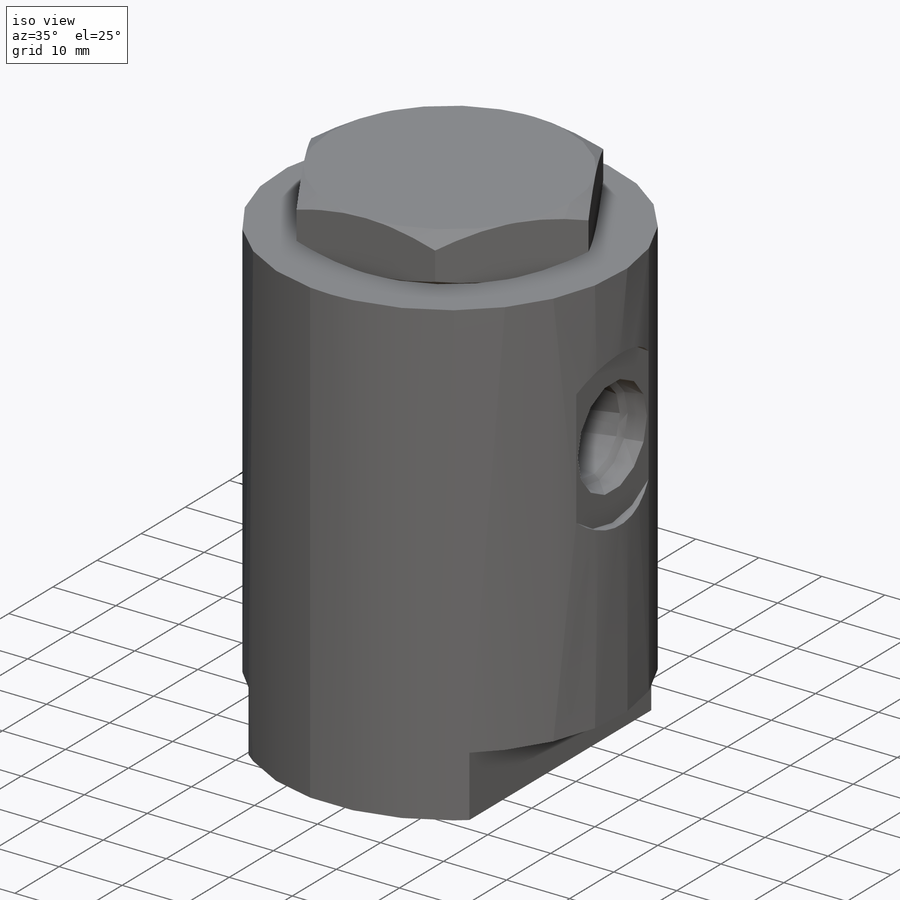
[diagram: iso view]
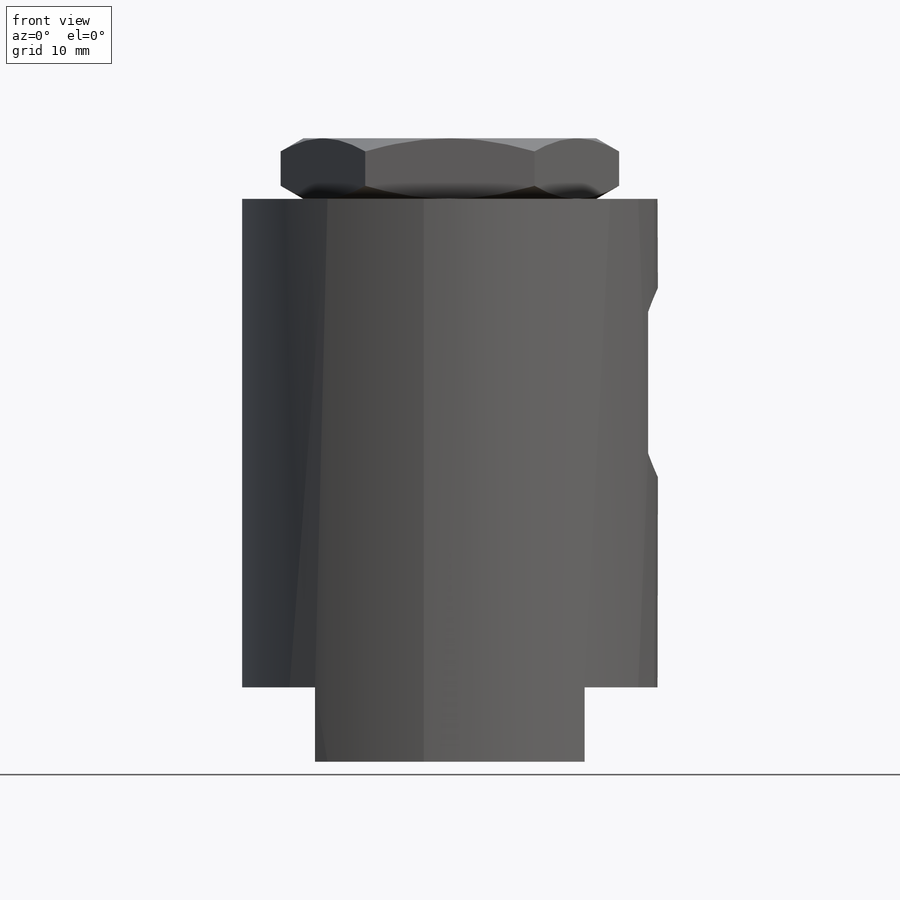
[diagram: front view]
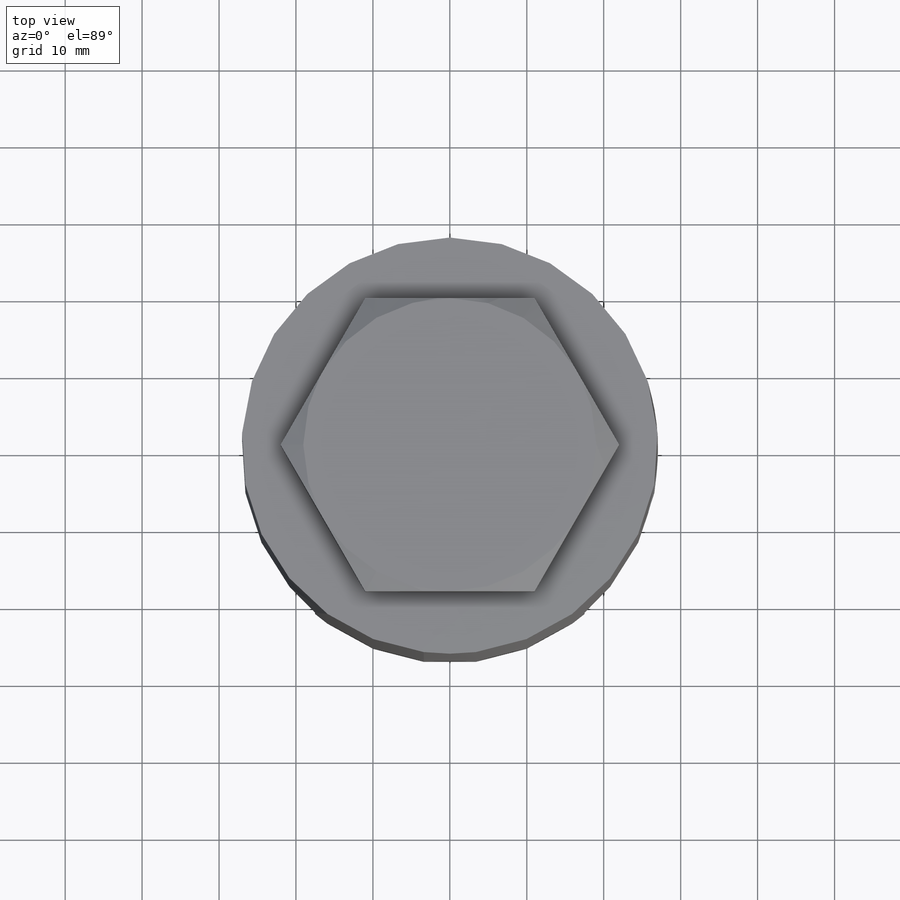
[diagram: top view]
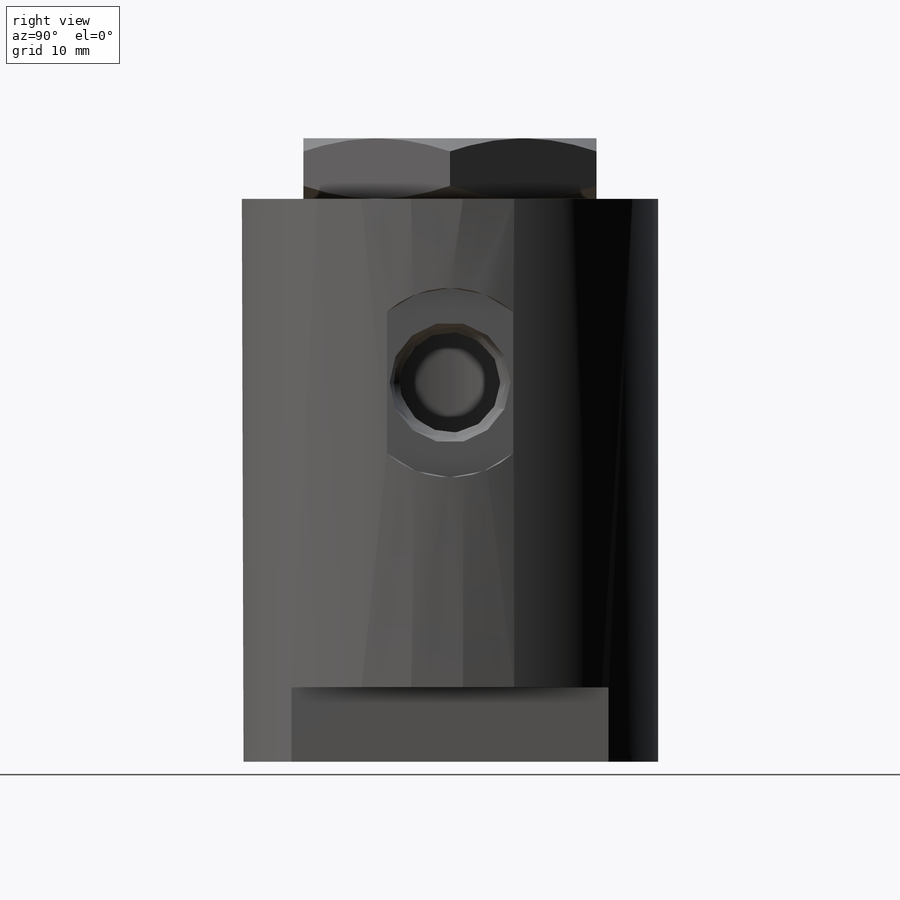
[diagram: right view]
SOLIDWORKS PART (.sldprt)
format: sldprt  version: not decoded by parser v0  size: 265,216 bytes
history: native  units: mm
features: sketch x7, plane x4, cut_revolve x4, extrude x2, material x1, cut_extrude x1 (+13 scaffold rows collapsed)
feature tree (32):
  scaffold x13  (default folders/planes/origin — collapsed)
  material  "Alloy Steel"
  plane  "Plane1"
  sketch  "Sketch1"  dims[D1=54.102mm]
  extrude  "Extrude1"  Depth=73.152mm
  sketch  "Sketch2"  dims[D2=35.052mm D1=0.0mm]
  cut_extrude  "Cut-Extrude1"  Depth=9.652mm
  plane  "Plane2"
  sketch  "S2D0007"  dims[c1.D1=1.27mm c1.D2=49.276mm c1.D3=24.638mm c1.D4=~2.713599mm c2.D4=12.0deg c2.D5=15.7099mm c2.D6=~1.061029mm c3.D6=45.0deg c3.D7=2.6543mm c3.D8=13.081mm c3.D9=~7.630366mm c4.D9=59.0deg c4.D10=15.4686mm]
  cut_revolve  "Cut-Revolve1"  Angle=360deg
  plane  "Plane3"
  sketch  "Sketch4"  dims[c1.D1=0.254mm c1.D2=13.081mm c1.D3=24.638mm c1.D4=15.7226mm c1.D5=6.5405mm c2.D5=59.0deg c2.D6=~1.061029mm c3.D6=45.0deg c3.D7=2.6543mm c3.D8=2.6543mm c4.D8=12.0deg c4.D9=15.7099mm]
  cut_revolve  "Cut-Revolve2"  Angle=360deg
  sketch  "Sketch5"  dims[D1=38.1mm]
  extrude  "Extrude2"  Depth=7.874mm
  plane  "Plane4"
  sketch  "Sketch6"  dims[c1.D1=~6.819084mm c2.D1=60.0deg c2.D2=63.5mm]
  cut_revolve  "Cut-Revolve3"  Angle=360deg
  sketch  "Sketch7"  dims[D1=31.75mm D2=12.827mm]
  cut_revolve  "Cut-Revolve4"  Angle=360deg
decode coverage: 14 of 14 modeling features carry decoded parameters
note: ~ marks probable driven/reference dimensions
note: suppression state not decoded; provenance and decode notes live in map.json
